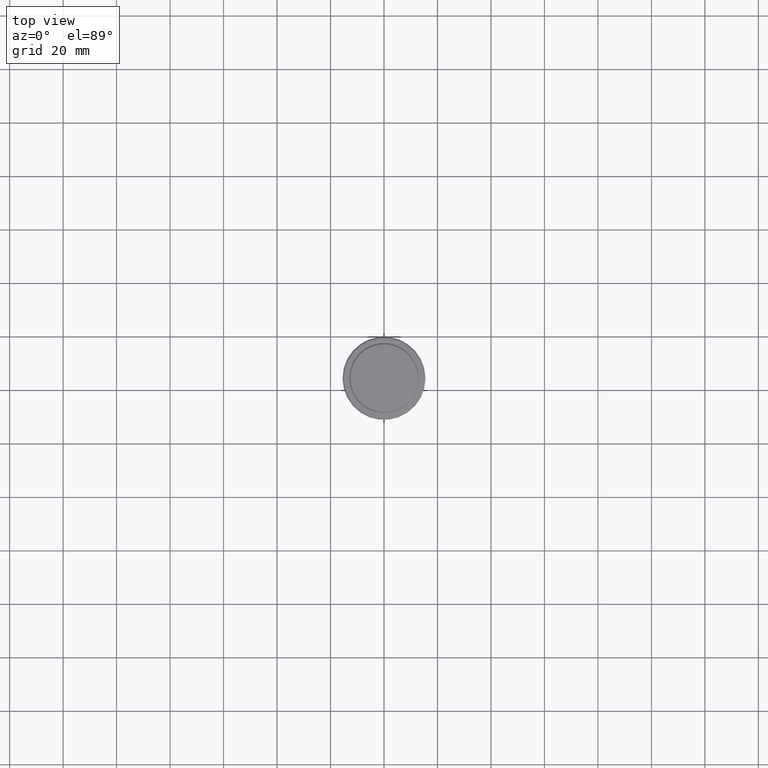
[diagram: clean part render]
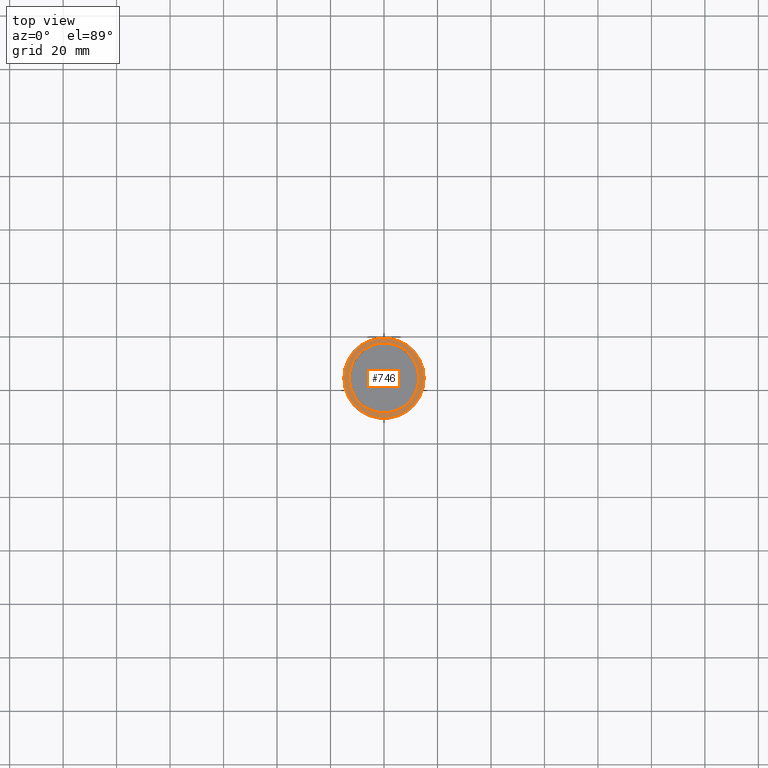
[diagram: same view with one face highlighted and labeled with its STEP entity id]
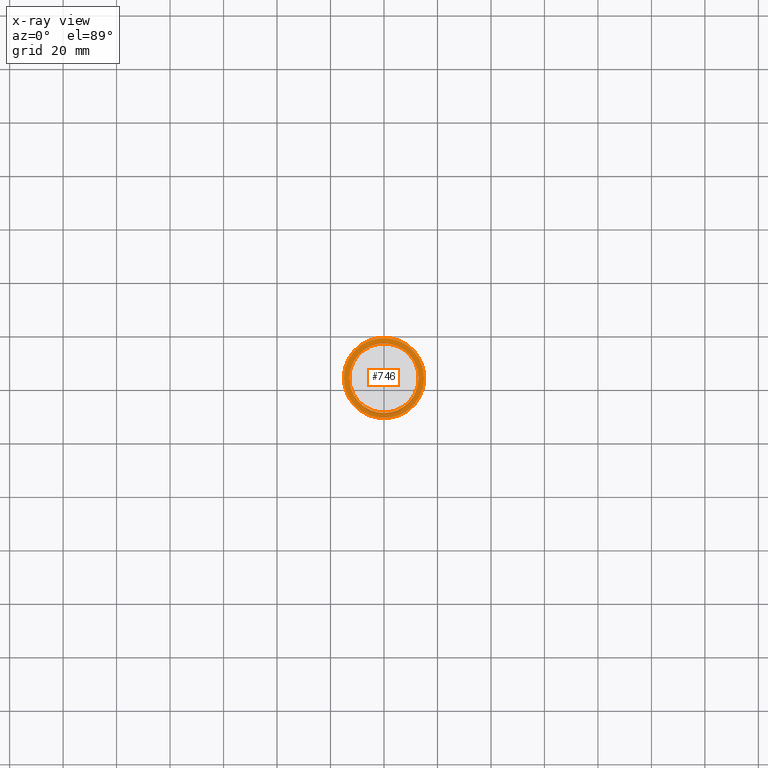
[diagram: x-ray of the same camera — body ghosted, the highlighted face saturated]
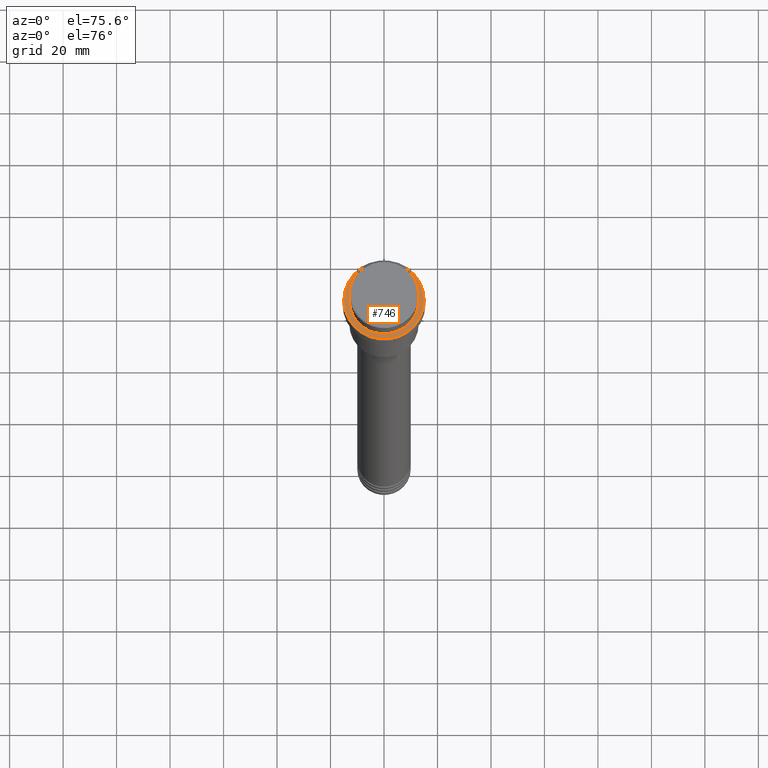
[diagram: same view with one face highlighted and labeled with its STEP entity id]
A machine part, top view. The second image highlights one B-rep face of the part: STEP entity #746.
The next image is the same camera in x-ray: the body ghosted, the highlighted face saturated — about 0% of this face is hidden behind the body in this view.
A second angle (auxiliary view) of the same face is appended — the face is thin or edge-on in the first view.
In plain terms, the highlighted planar face has unit normal (0, -0, 1).
Its self-contained STEP definition (entity closure, byte-faithful):
#72 = FACE_OUTER_BOUND ( 'NONE', #878, .T. ) ;
#84 = DIRECTION ( 'NONE',  ( -0.000000000000000000, -0.000000000000000000, 1.000000000000000000 ) ) ;
#167 = CARTESIAN_POINT ( 'NONE',  ( 12.99999999999999467, 0.000000000000000000, -9.000000000000000000 ) ) ;
#190 = DIRECTION ( 'NONE',  ( -0.000000000000000000, -0.000000000000000000, 1.000000000000000000 ) ) ;
#207 = EDGE_CURVE ( 'NONE', #399, #957, #643, .T. ) ;
#211 = DIRECTION ( 'NONE',  ( 0.000000000000000000, 0.000000000000000000, -1.000000000000000000 ) ) ;
#215 = CIRCLE ( 'NONE', #604, 15.00000000000001421 ) ;
#249 = EDGE_LOOP ( 'NONE', ( #918, #941 ) ) ;
#262 = DIRECTION ( 'NONE',  ( 1.000000000000000000, 0.000000000000000000, 0.000000000000000000 ) ) ;
#280 = CIRCLE ( 'NONE', #437, 15.00000000000001421 ) ;
#302 = AXIS2_PLACEMENT_3D ( 'NONE', #1343, #1020, #465 ) ;
#306 = CARTESIAN_POINT ( 'NONE',  ( 0.000000000000000000, 0.000000000000000000, -9.000000000000000000 ) ) ;
#394 = CIRCLE ( 'NONE', #1037, 12.99999999999999467 ) ;
#399 = VERTEX_POINT ( 'NONE', #167 ) ;
#401 = VERTEX_POINT ( 'NONE', #737 ) ;
#437 = AXIS2_PLACEMENT_3D ( 'NONE', #715, #190, #632 ) ;
#446 = EDGE_CURVE ( 'NONE', #1002, #401, #215, .T. ) ;
#465 = DIRECTION ( 'NONE',  ( 1.000000000000000000, 0.000000000000000000, 0.000000000000000000 ) ) ;
#468 = EDGE_CURVE ( 'NONE', #401, #1002, #280, .T. ) ;
#492 = AXIS2_PLACEMENT_3D ( 'NONE', #732, #1289, #1169 ) ;
#503 = PLANE ( 'NONE',  #302 ) ;
#573 = EDGE_CURVE ( 'NONE', #957, #399, #394, .T. ) ;
#590 = ORIENTED_EDGE ( 'NONE', *, *, #468, .T. ) ;
#604 = AXIS2_PLACEMENT_3D ( 'NONE', #845, #84, #262 ) ;
#632 = DIRECTION ( 'NONE',  ( 1.000000000000000000, 0.000000000000000000, 0.000000000000000000 ) ) ;
#643 = CIRCLE ( 'NONE', #492, 12.99999999999999467 ) ;
#715 = CARTESIAN_POINT ( 'NONE',  ( 0.000000000000000000, 0.000000000000000000, -9.000000000000000000 ) ) ;
#732 = CARTESIAN_POINT ( 'NONE',  ( 0.000000000000000000, 0.000000000000000000, -9.000000000000000000 ) ) ;
#737 = CARTESIAN_POINT ( 'NONE',  ( -15.00000000000001421, 0.000000000000000000, -9.000000000000000000 ) ) ;
#746 = ADVANCED_FACE ( 'NONE', ( #72, #1026 ), #503, .T. ) ;
#765 = DIRECTION ( 'NONE',  ( 1.000000000000000000, 0.000000000000000000, 0.000000000000000000 ) ) ;
#774 = ORIENTED_EDGE ( 'NONE', *, *, #446, .T. ) ;
#845 = CARTESIAN_POINT ( 'NONE',  ( 0.000000000000000000, 0.000000000000000000, -9.000000000000000000 ) ) ;
#878 = EDGE_LOOP ( 'NONE', ( #590, #774 ) ) ;
#918 = ORIENTED_EDGE ( 'NONE', *, *, #207, .T. ) ;
#941 = ORIENTED_EDGE ( 'NONE', *, *, #573, .T. ) ;
#957 = VERTEX_POINT ( 'NONE', #1028 ) ;
#1002 = VERTEX_POINT ( 'NONE', #1389 ) ;
#1020 = DIRECTION ( 'NONE',  ( 0.000000000000000000, -0.000000000000000000, 1.000000000000000000 ) ) ;
#1026 = FACE_BOUND ( 'NONE', #249, .T. ) ;
#1028 = CARTESIAN_POINT ( 'NONE',  ( -12.99999999999999467, 1.592040838891558504E-15, -9.000000000000000000 ) ) ;
#1037 = AXIS2_PLACEMENT_3D ( 'NONE', #306, #211, #765 ) ;
#1169 = DIRECTION ( 'NONE',  ( 1.000000000000000000, 0.000000000000000000, 0.000000000000000000 ) ) ;
#1289 = DIRECTION ( 'NONE',  ( 0.000000000000000000, 0.000000000000000000, -1.000000000000000000 ) ) ;
#1343 = CARTESIAN_POINT ( 'NONE',  ( 0.000000000000000000, 12.49999999999999289, -9.000000000000000000 ) ) ;
#1389 = CARTESIAN_POINT ( 'NONE',  ( 15.00000000000001421, 1.867586368699714559E-15, -9.000000000000000000 ) ) ;